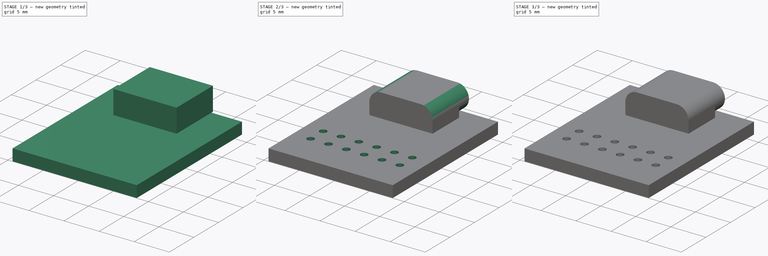
[diagram: build sequence overview — one tinted view per stage of 3, left to right]
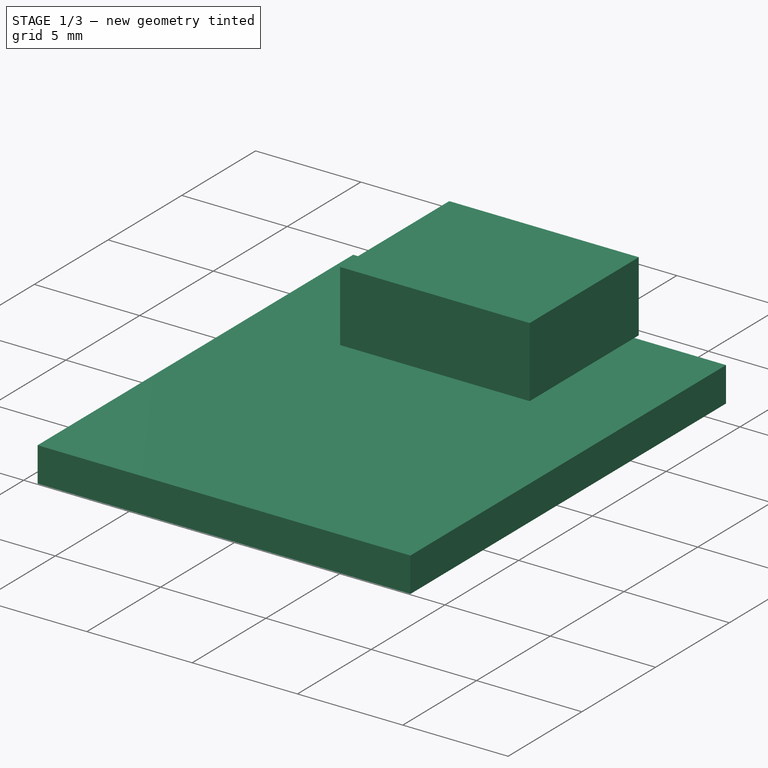
[diagram: stage 1 of 3 — iso view after this stage's code; geometry added in this stage tinted green]
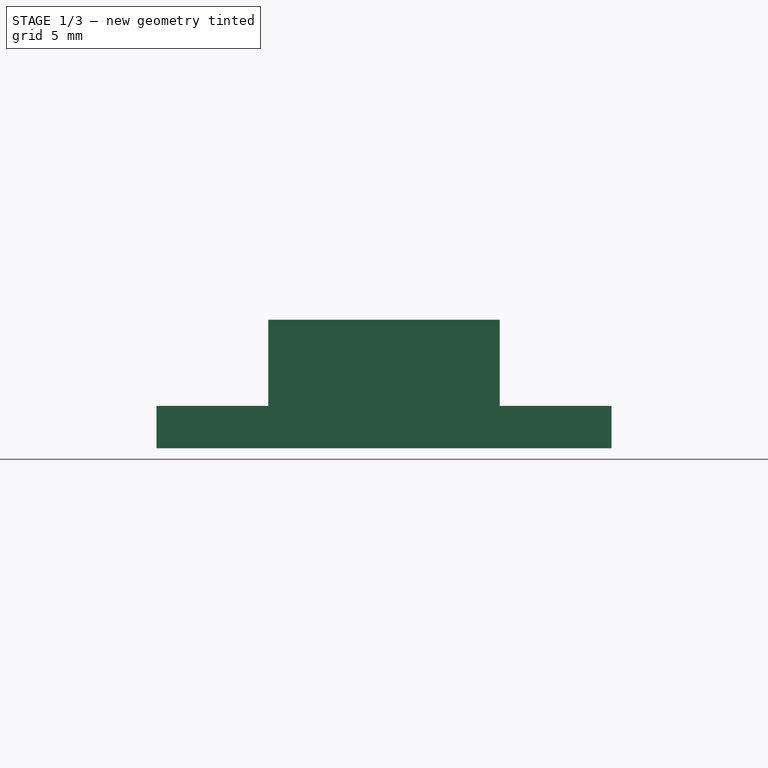
[diagram: stage 1 of 3 — front view after this stage's code; geometry added in this stage tinted green]
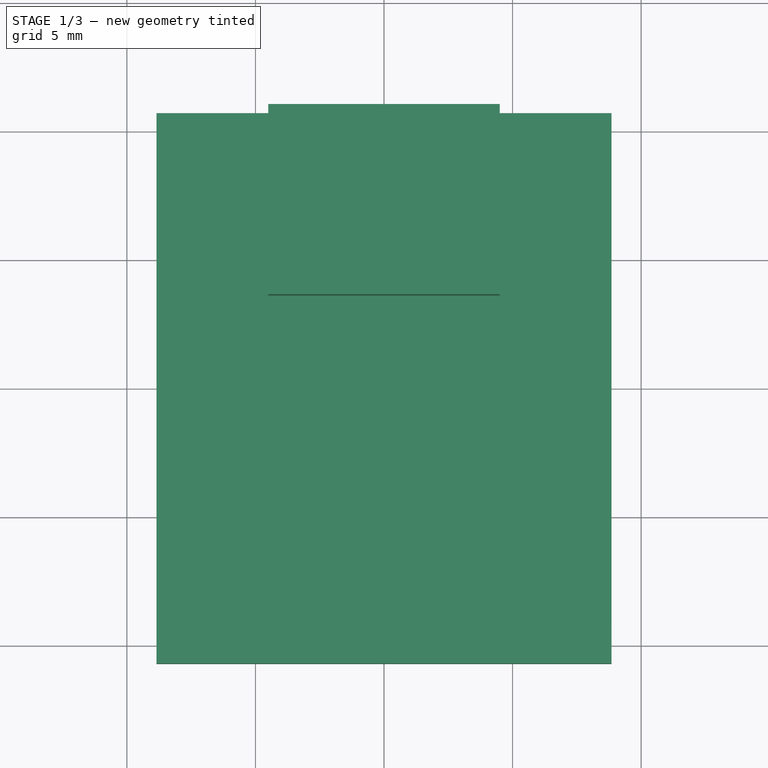
[diagram: stage 1 of 3 — top view after this stage's code; geometry added in this stage tinted green]
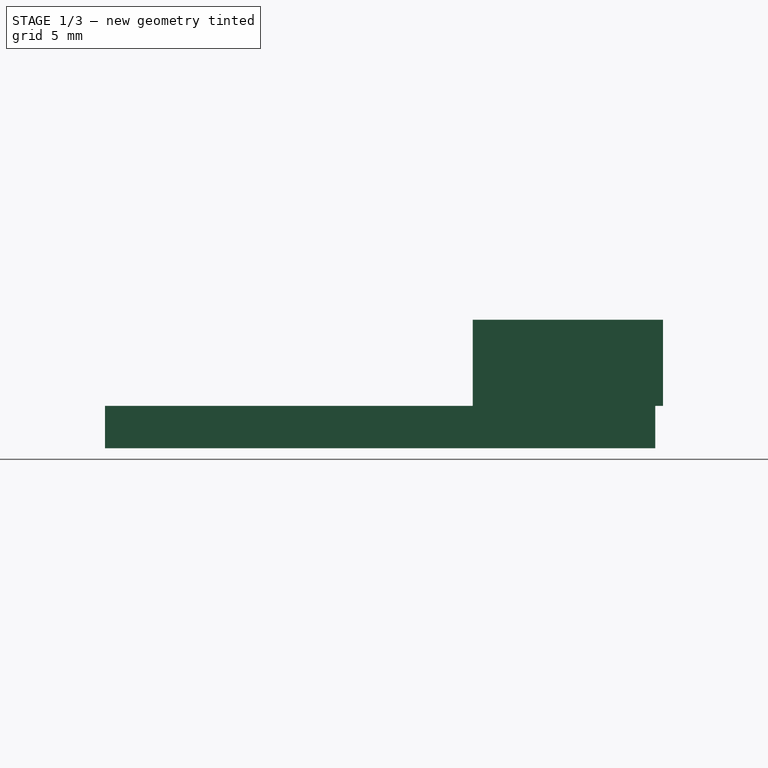
[diagram: stage 1 of 3 — right view after this stage's code; geometry added in this stage tinted green]
FCSTD DOCUMENT  (FreeCAD 0.20R)
Label: usbc
License: All rights reserved
LicenseURL: http://en.wikipedia.org/wiki/All_rights_reserved
objects: Sketcher::SketchObject×5, PartDesign::Pocket×4, PartDesign::Pad×2, PartDesign::Fillet×1, PartDesign::Body×1
note: 20 computed .brp shape members not serialized (recipe doc carries the construction recipe); baked Part::Feature solids carry a one-line shape summary decoded from their .brp

FEATURE [Sketcher::SketchObject] Sketch
  FullyConstrained = true
  MapMode = 5
  Support = -> [XY_Plane]
  sketch-geometry (5):
    g0: LineSegment StartX=-8.85 StartY=-10.7 StartZ=0 EndX=-8.85 EndY=10.7 EndZ=0
    g1: LineSegment StartX=-8.85 StartY=10.7 StartZ=0 EndX=8.85 EndY=10.7 EndZ=0
    g2: LineSegment StartX=8.85 StartY=10.7 StartZ=0 EndX=8.85 EndY=-10.7 EndZ=0
    g3: LineSegment StartX=8.85 StartY=-10.7 StartZ=0 EndX=-8.85 EndY=-10.7 EndZ=0
    g4: GeomPoint X=0 Y=0 Z=0
  constraints (12):
    c: Coincident(g0,g1)
    c: Coincident(g1,g2)
    c: Coincident(g2,g3)
    c: Coincident(g3,g0)
    c: Horizontal(g1)
    c: Horizontal(g3)
    c: Vertical(g0)
    c: Vertical(g2)
    c: Symmetric(g1,g0,g4)
    c: Coincident(g4,g-1)
    c: DistanceX(g1,g1) = 17.7
    c: DistanceY(g0,g0) = 21.4
FEATURE [PartDesign::Pad] Pad
  Direction = (0,0,1)
  Length = 1.65
  Length2 = 10
  Profile = -> Sketch
  ReferenceAxis = -> Sketch [N_Axis]
  Type = 0
FEATURE [Sketcher::SketchObject] Sketch001
  ExternalGeometry = -> [Pad]
  FullyConstrained = true
  MapMode = 5
  Placement = pos=(0,0,1.65) rot=(0,0,1;0rad)
  Support = -> [Pad]
  sketch-geometry (5):
    g0: LineSegment StartX=-4.5 StartY=3.6 StartZ=0 EndX=-4.5 EndY=11 EndZ=0
    g1: LineSegment StartX=-4.5 StartY=11 StartZ=0 EndX=4.5 EndY=11 EndZ=0
    g2: LineSegment StartX=4.5 StartY=11 StartZ=0 EndX=4.5 EndY=3.6 EndZ=0
    g3: LineSegment StartX=4.5 StartY=3.6 StartZ=0 EndX=-4.5 EndY=3.6 EndZ=0
    g4: GeomPoint X=0 Y=7.3 Z=0
  constraints (13):
    c: Coincident(g0,g1)
    c: Coincident(g1,g2)
    c: Coincident(g2,g3)
    c: Coincident(g3,g0)
    c: Horizontal(g1)
    c: Horizontal(g3)
    c: Vertical(g0)
    c: Vertical(g2)
    c: Symmetric(g1,g0,g4)
    c: PointOnObject(g4,g-2)
    c: DistanceY(g-3,g0) = 0.3
    c: DistanceX(g1,g1) = 9
    c: DistanceY(g0,g0) = 7.4
FEATURE [PartDesign::Pad] Pad001
  BaseFeature = -> Pad
  Direction = (0,0,1)
  Length = 3.35
  Length2 = 10
  Profile = -> Sketch001
  ReferenceAxis = -> Sketch001 [N_Axis]
  Type = 0
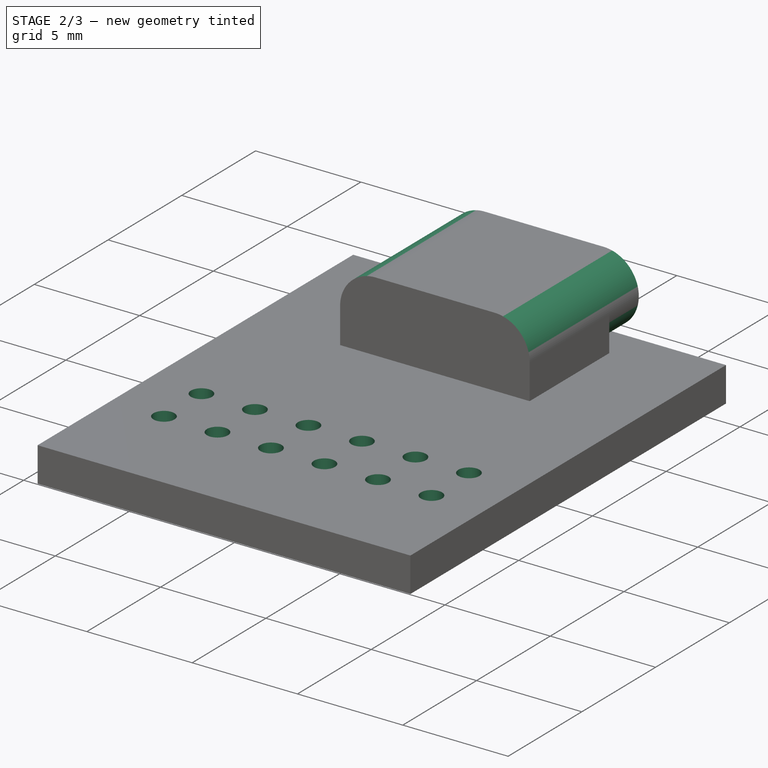
[diagram: stage 2 of 3 — iso view after this stage's code; geometry added in this stage tinted green]
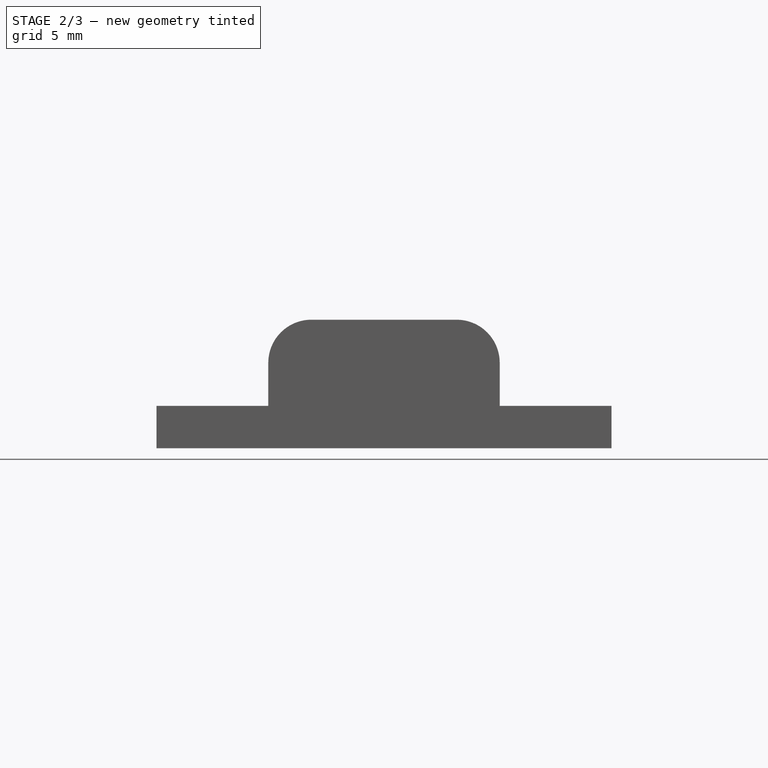
[diagram: stage 2 of 3 — front view after this stage's code; geometry added in this stage tinted green]
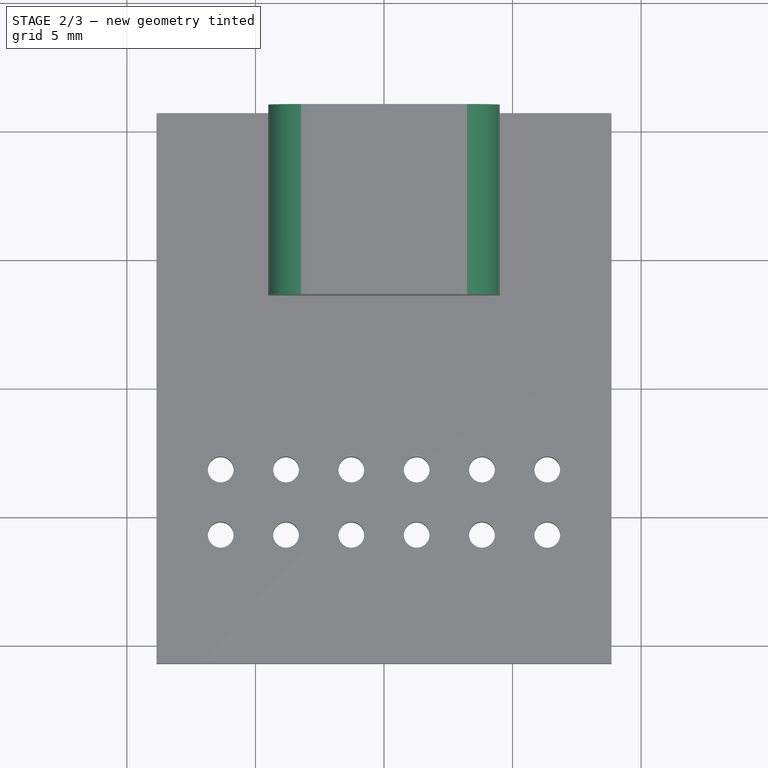
[diagram: stage 2 of 3 — top view after this stage's code; geometry added in this stage tinted green]
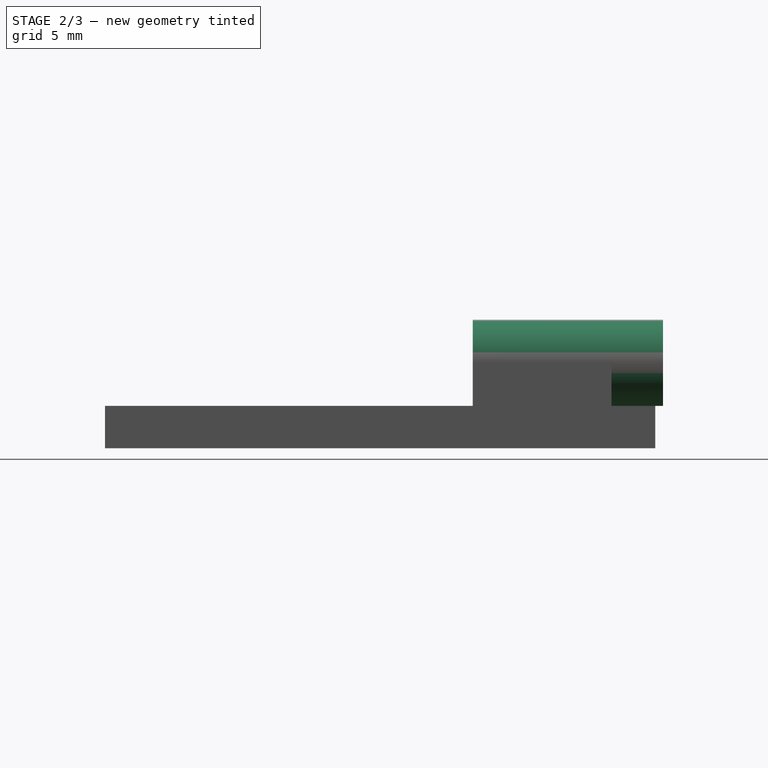
[diagram: stage 2 of 3 — right view after this stage's code; geometry added in this stage tinted green]
FEATURE [Sketcher::SketchObject] Sketch002
  ExternalGeometry = -> [Pad001]
  FullyConstrained = true
  MapMode = 5
  Placement = pos=(0,0,1.65) rot=(0,0,1;0rad)
  Support = -> [Pad001]
  sketch-geometry (24):
    g0: Circle CenterX=-6.35 CenterY=-3.16 CenterZ=0 NormalX=0 NormalY=0 NormalZ=1 AngleXU=0 Radius=0.5
    g1: Circle CenterX=-3.81 CenterY=-3.16 CenterZ=0 NormalX=0 NormalY=0 NormalZ=1 AngleXU=0 Radius=0.5
    g2: LineSegment StartX=-6.35 StartY=-3.16 StartZ=0 EndX=-3.81 EndY=-3.16 EndZ=0
    g3: Circle CenterX=-1.27 CenterY=-3.16 CenterZ=0 NormalX=0 NormalY=0 NormalZ=1 AngleXU=0 Radius=0.5
    g4: LineSegment StartX=-3.81 StartY=-3.16 StartZ=0 EndX=-1.27 EndY=-3.16 EndZ=0
    g5: Circle CenterX=1.27 CenterY=-3.16 CenterZ=0 NormalX=0 NormalY=0 NormalZ=1 AngleXU=0 Radius=0.5
    g6: LineSegment StartX=-1.27 StartY=-3.16 StartZ=0 EndX=1.27 EndY=-3.16 EndZ=0
    g7: Circle CenterX=3.81 CenterY=-3.16 CenterZ=0 NormalX=0 NormalY=0 NormalZ=1 AngleXU=0 Radius=0.5
    g8: LineSegment StartX=1.27 StartY=-3.16 StartZ=0 EndX=3.81 EndY=-3.16 EndZ=0
    g9: Circle CenterX=6.35 CenterY=-3.16 CenterZ=0 NormalX=0 NormalY=0 NormalZ=1 AngleXU=0 Radius=0.5
    g10: LineSegment StartX=3.81 StartY=-3.16 StartZ=0 EndX=6.35 EndY=-3.16 EndZ=0
    g11: Circle CenterX=-6.35 CenterY=-5.7 CenterZ=0 NormalX=0 NormalY=0 NormalZ=1 AngleXU=0 Radius=0.5
    g12: LineSegment StartX=-6.35 StartY=-3.16 StartZ=0 EndX=-6.35 EndY=-5.7 EndZ=0
    g13: Circle CenterX=-3.81 CenterY=-5.7 CenterZ=0 NormalX=0 NormalY=0 NormalZ=1 AngleXU=0 Radius=0.5
    g14: LineSegment StartX=-6.35 StartY=-5.7 StartZ=0 EndX=-3.81 EndY=-5.7 EndZ=0
    g15: Circle CenterX=-1.27 CenterY=-5.7 CenterZ=0 NormalX=0 NormalY=0 NormalZ=1 AngleXU=0 Radius=0.5
    g16: LineSegment StartX=-3.81 StartY=-5.7 StartZ=0 EndX=-1.27 EndY=-5.7 EndZ=0
    g17: Circle CenterX=1.27 CenterY=-5.7 CenterZ=0 NormalX=0 NormalY=0 NormalZ=1 AngleXU=0 Radius=0.5
    g18: LineSegment StartX=-1.27 StartY=-5.7 StartZ=0 EndX=1.27 EndY=-5.7 EndZ=0
    g19: Circle CenterX=3.81 CenterY=-5.7 CenterZ=0 NormalX=0 NormalY=0 NormalZ=1 AngleXU=0 Radius=0.5
    g20: LineSegment StartX=1.27 StartY=-5.7 StartZ=0 EndX=3.81 EndY=-5.7 EndZ=0
    g21: Circle CenterX=6.35 CenterY=-5.7 CenterZ=0 NormalX=0 NormalY=0 NormalZ=1 AngleXU=0 Radius=0.5
    g22: LineSegment StartX=3.81 StartY=-5.7 StartZ=0 EndX=6.35 EndY=-5.7 EndZ=0
    g23: GeomPoint X=0 Y=-3.16 Z=0
  constraints (59):
    c: Coincident(g0,g2)
    c: Coincident(g1,g2)
    c: Distance(g2) = 2.54
    c: Coincident(g1,g4)
    c: Coincident(g3,g4)
    c: Equal(g2,g4)
    c: Parallel(g4,g2)
    c: Coincident(g3,g6)
    c: Coincident(g5,g6)
    c: Equal(g2,g6)
    c: Parallel(g6,g2)
    c: Coincident(g5,g8)
    c: Coincident(g7,g8)
    c: Equal(g2,g8)
    c: Parallel(g8,g2)
    c: Coincident(g7,g10)
    c: Coincident(g9,g10)
    c: Equal(g2,g10)
    c: Parallel(g10,g2)
    c: Coincident(g0,g12)
    c: Coincident(g11,g12)
    c: Equal(g12,g2)
    c: Perpendicular(g12,g2)
    c: Coincident(g11,g14)
    c: Coincident(g13,g14)
    c: Equal(g2,g14)
    c: Parallel(g14,g2)
    c: Coincident(g13,g16)
    c: Coincident(g15,g16)
    c: Equal(g2,g16)
    c: Parallel(g16,g2)
    c: Coincident(g15,g18)
    c: Coincident(g17,g18)
    c: Equal(g2,g18)
    c: Parallel(g18,g2)
    c: Coincident(g17,g20)
    c: Coincident(g19,g20)
    c: Equal(g2,g20)
    c: Parallel(g20,g2)
    c: Coincident(g19,g22)
    c: Coincident(g21,g22)
    c: Equal(g2,g22)
    c: Parallel(g22,g2)
    c: Vertical(g12)
    c: DistanceY(g-3,g11) = 5
    c: Equal(g0,g11)
    c: Equal(g0,g13)
    c: Equal(g0,g1)
    c: Equal(g0,g3)
    c: Equal(g0,g15)
    c: Equal(g0,g17)
    c: Equal(g0,g5)
    c: Equal(g0,g7)
    c: Equal(g0,g19)
    c: Equal(g0,g21)
    c: Equal(g0,g9)
    c: Diameter(g0) = 1
    c: Symmetric(g5,g3,g23)
    c: PointOnObject(g23,g-2)
FEATURE [PartDesign::Pocket] Pocket
  BaseFeature = -> Pad001
  Direction = (0,0,-1)
  Length = 5
  Length2 = 5
  Profile = -> Sketch002
  ReferenceAxis = -> Sketch002 [N_Axis]
  Type = 1
FEATURE [PartDesign::Fillet] Fillet
  Base = -> Pocket [Edge59,Edge63]
  BaseFeature = -> Pocket
  Radius = 1.675
  SupportTransform = false
  UseAllEdges = false
FEATURE [Sketcher::SketchObject] Sketch003
  ExternalGeometry = -> [Fillet]
  FullyConstrained = true
  MapMode = 5
  Placement = pos=(0,11,0) rot=(0,0.707107,0.707107;3.14159rad)
  Support = -> [Fillet]
  sketch-geometry (6):
    g0: ArcOfCircle CenterX=-2.825 CenterY=3.325 CenterZ=0 NormalX=0 NormalY=0 NormalZ=1 AngleXU=0 Radius=1.675 StartAngle=3.14159 EndAngle=4.71239
    g1: ArcOfCircle CenterX=2.825 CenterY=3.325 CenterZ=0 NormalX=0 NormalY=0 NormalZ=1 AngleXU=0 Radius=1.675 StartAngle=4.71239 EndAngle=6.28319
    g2: LineSegment StartX=-2.825 StartY=1.65 StartZ=0 EndX=-4.5 EndY=1.65 EndZ=0
    g3: LineSegment StartX=2.825 StartY=1.65 StartZ=0 EndX=4.5 EndY=1.65 EndZ=0
    g4: LineSegment StartX=4.5 StartY=3.325 StartZ=0 EndX=4.5 EndY=1.65 EndZ=0
    g5: LineSegment StartX=-4.5 StartY=3.325 StartZ=0 EndX=-4.5 EndY=1.65 EndZ=0
  constraints (12):
    c: Tangent(g0,g-4) = 1.5708
    c: Tangent(g-3,g1) = -1.5708
    c: Coincident(g2,g-4)
    c: Horizontal(g2)
    c: Coincident(g3,g-3)
    c: Horizontal(g3)
    c: Coincident(g4,g1)
    c: Coincident(g4,g3)
    c: Coincident(g5,g0)
    c: Coincident(g5,g2)
    c: Tangent(g3,g1) = -1.5708
    c: Tangent(g2,g0) = 1.5708
FEATURE [PartDesign::Pocket] Pocket001
  BaseFeature = -> Fillet
  Direction = (0,-1,2e-16)
  Length = 2
  Length2 = 5
  Profile = -> Sketch003
  ReferenceAxis = -> Sketch003 [N_Axis]
  Refine = true
  Type = 0
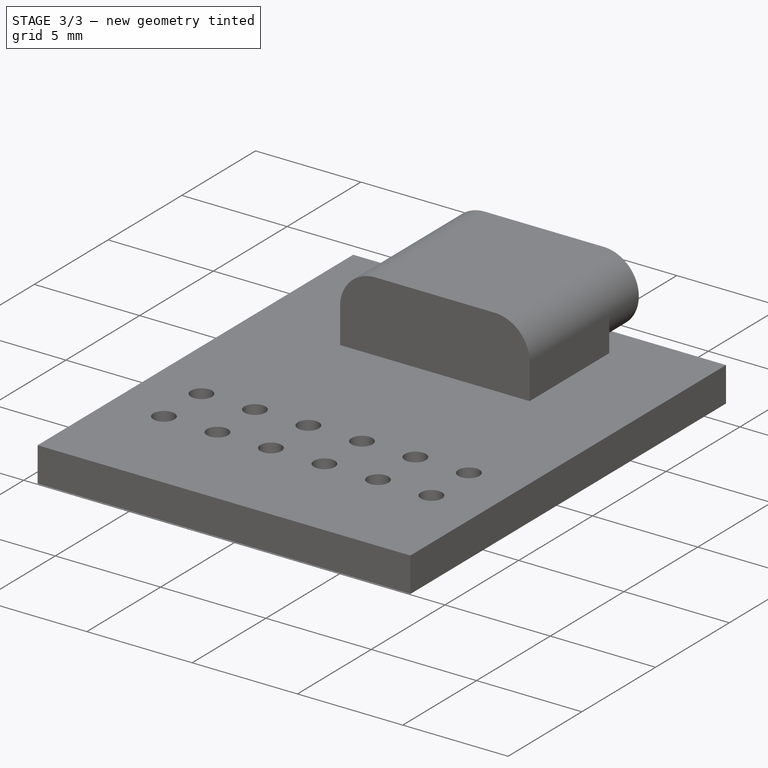
[diagram: stage 3 of 3 — iso view after this stage's code; geometry added in this stage tinted green]
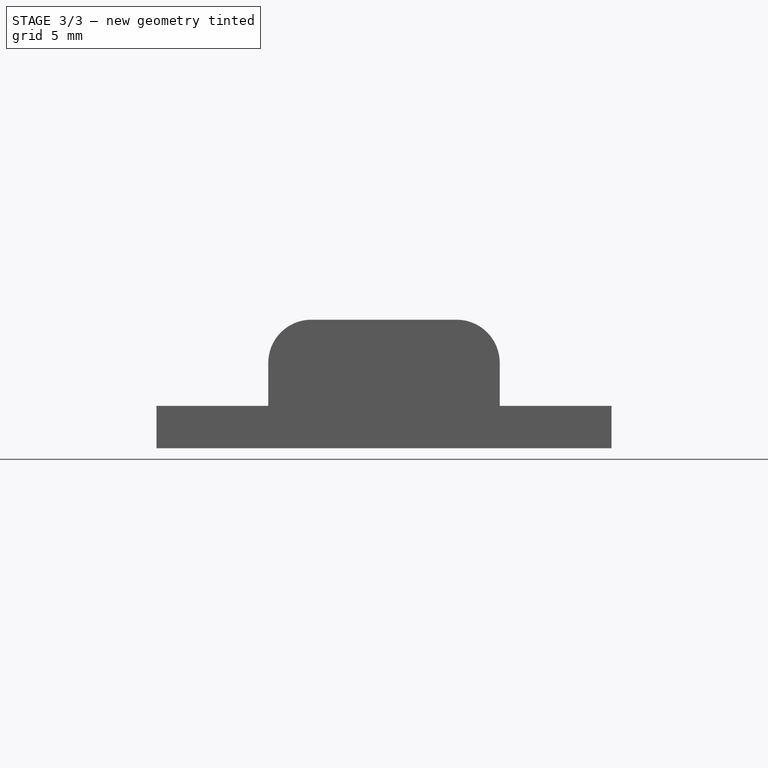
[diagram: stage 3 of 3 — front view after this stage's code; geometry added in this stage tinted green]
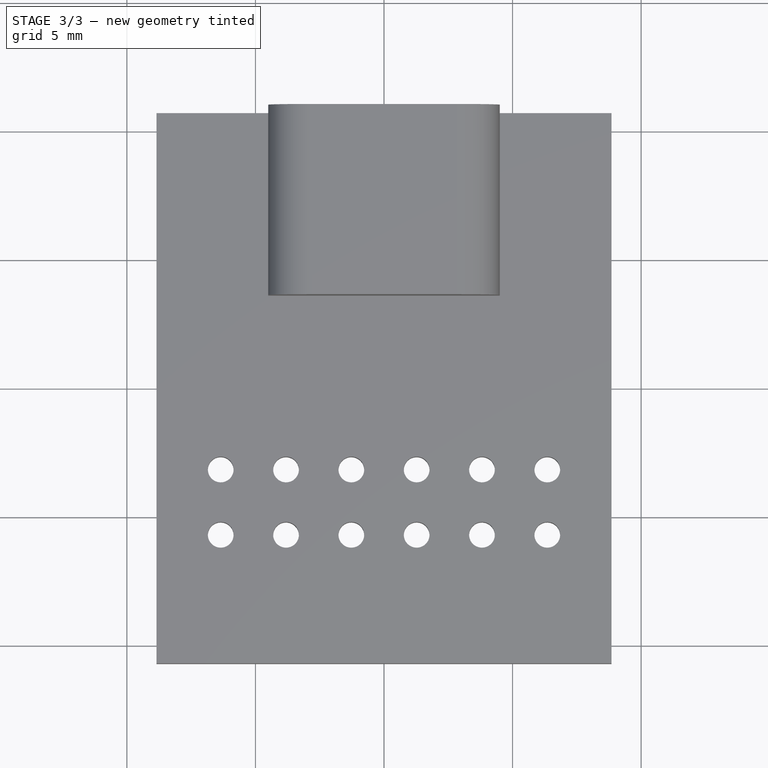
[diagram: stage 3 of 3 — top view after this stage's code; geometry added in this stage tinted green]
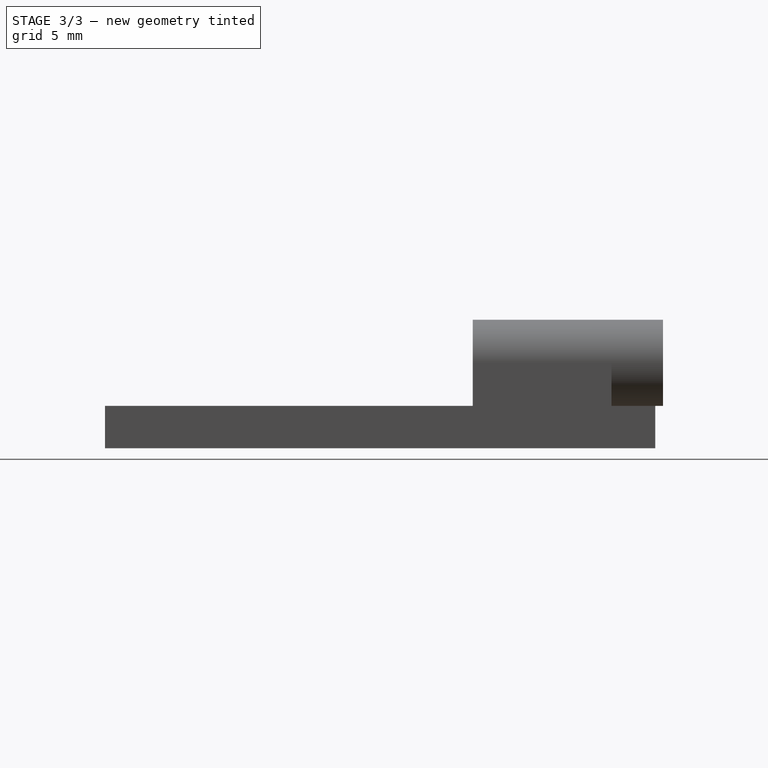
[diagram: stage 3 of 3 — right view after this stage's code; geometry added in this stage tinted green]
FEATURE [Sketcher::SketchObject] Sketch004
  ExternalGeometry = -> [Pocket001]
  FullyConstrained = true
  MapMode = 5
  Placement = pos=(0,11,0) rot=(0,0.707107,0.707107;3.14159rad)
  Support = -> [Pocket001]
  sketch-geometry (8):
    g0: ArcOfCircle CenterX=-2.825 CenterY=3.325 CenterZ=0 NormalX=0 NormalY=0 NormalZ=1 AngleXU=0 Radius=1.375 StartAngle=1.5708 EndAngle=4.71239
    g1: ArcOfCircle CenterX=2.825 CenterY=3.325 CenterZ=0 NormalX=0 NormalY=0 NormalZ=1 AngleXU=0 Radius=1.375 StartAngle=4.71239 EndAngle=7.85398
    g2: LineSegment StartX=-2.825 StartY=1.95 StartZ=0 EndX=2.825 EndY=1.95 EndZ=0
    g3: LineSegment StartX=2.825 StartY=4.7 StartZ=0 EndX=-2.825 EndY=4.7 EndZ=0
    g4: ArcOfCircle CenterX=-2.825 CenterY=3.325 CenterZ=0 NormalX=0 NormalY=0 NormalZ=1 AngleXU=0 Radius=0.325 StartAngle=1.5708 EndAngle=4.71239
    g5: ArcOfCircle CenterX=2.825 CenterY=3.325 CenterZ=0 NormalX=0 NormalY=0 NormalZ=1 AngleXU=0 Radius=0.325 StartAngle=4.71239 EndAngle=7.85398
    g6: LineSegment StartX=-2.825 StartY=3 StartZ=0 EndX=2.825 EndY=3 EndZ=0
    g7: LineSegment StartX=2.825 StartY=3.65 StartZ=0 EndX=-2.825 EndY=3.65 EndZ=0
  constraints (16):
    c: Tangent(g0,g2) = -1.5708
    c: Tangent(g2,g1) = -1.5708
    c: Tangent(g1,g3) = -1.5708
    c: Tangent(g3,g0) = -1.5708
    c: Equal(g0,g1)
    c: Coincident(g0,g-3)
    c: Coincident(g1,g-4)
    c: Tangent(g4,g6) = -1.5708
    c: Tangent(g6,g5) = -1.5708
    c: Tangent(g5,g7) = -1.5708
    c: Tangent(g7,g4) = -1.5708
    c: Equal(g4,g5)
    c: Coincident(g4,g0)
    c: Coincident(g5,g1)
    c: DistanceY(g5,g5) = 0.65
    c: DistanceY(g0,g-3) = 0.3
FEATURE [PartDesign::Pocket] Pocket002
  BaseFeature = -> Pocket001
  Direction = (0,-1,2e-16)
  Length = 4.5
  Length2 = 5
  Profile = -> Sketch004
  ReferenceAxis = -> Sketch004 [N_Axis]
  Type = 0
FEATURE [PartDesign::Pocket] Pocket003
  BaseFeature = -> Pocket002
  Direction = (0,-1,0)
  Length = 0.35
  Length2 = 5
  Profile = -> Pocket002 [Face38]
  Type = 0
FEATURE [PartDesign::Body] Body
  Group = -> [Sketch,Pad,Sketch001,Pad001,Sketch002,Pocket,Fillet,Sketch003,Pocket001,Sketch004,Pocket002,Pocket003]
  Origin = -> Origin
  Tip = -> Pocket003
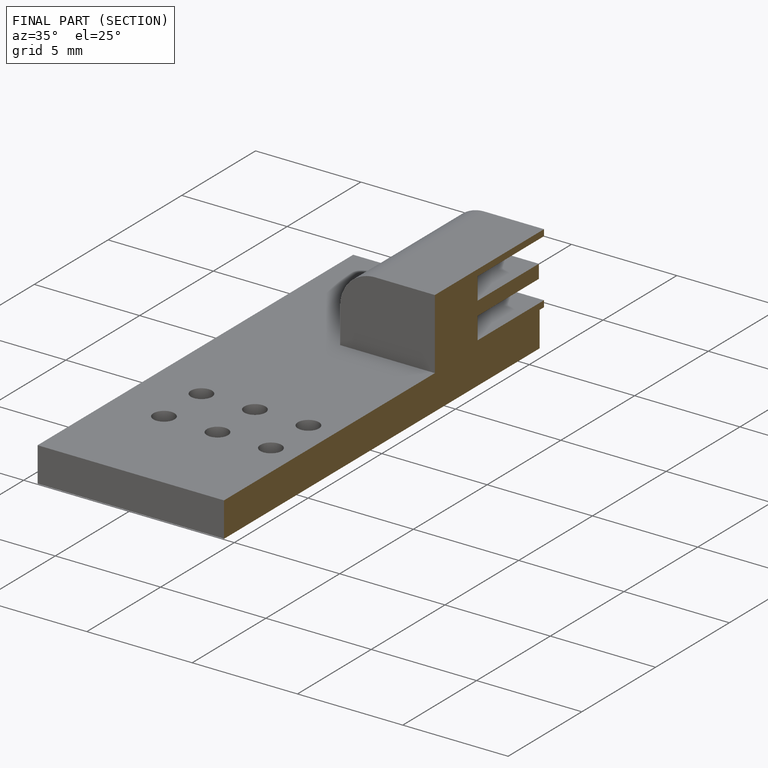
[diagram: finished part — half-section view (interior)]
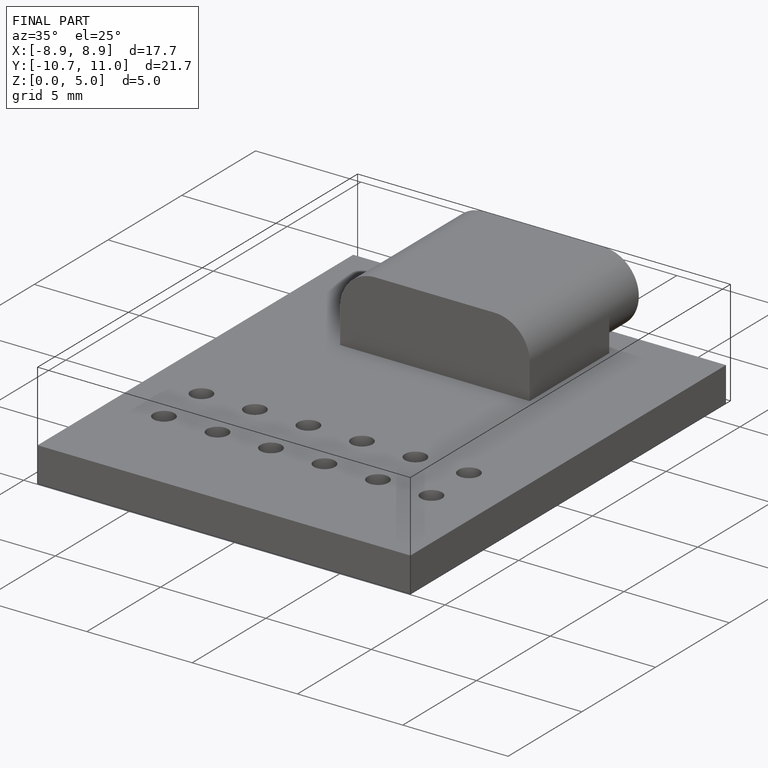
[diagram: finished part — iso view with bounding-box wireframe]
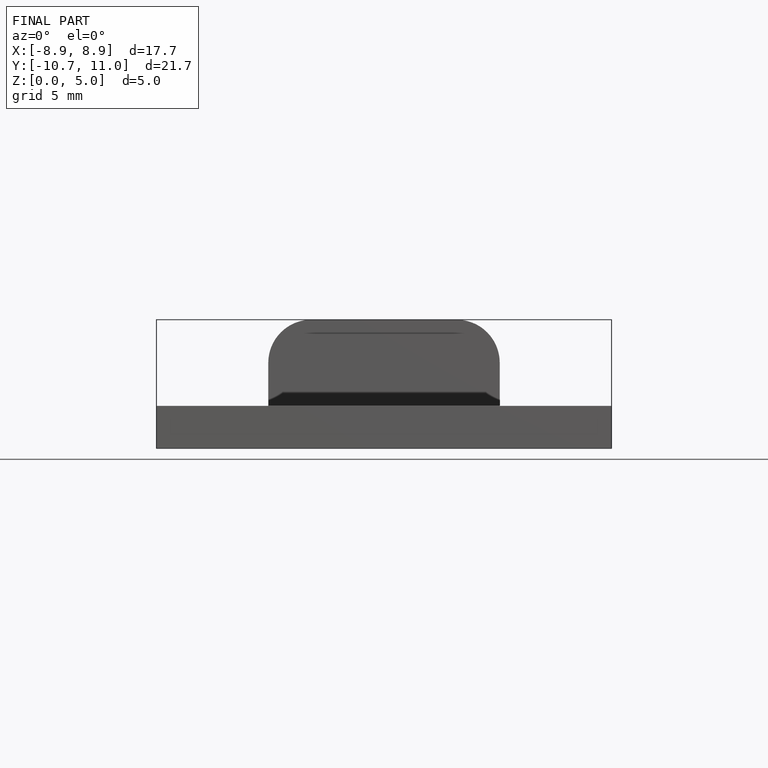
[diagram: finished part — front view with bounding-box wireframe]
